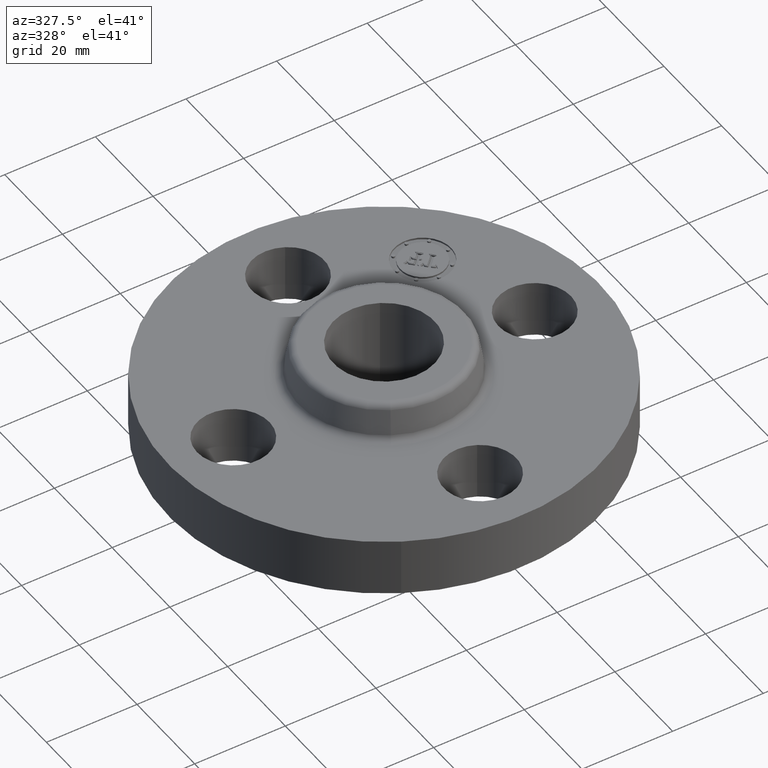
[diagram: clean part render]
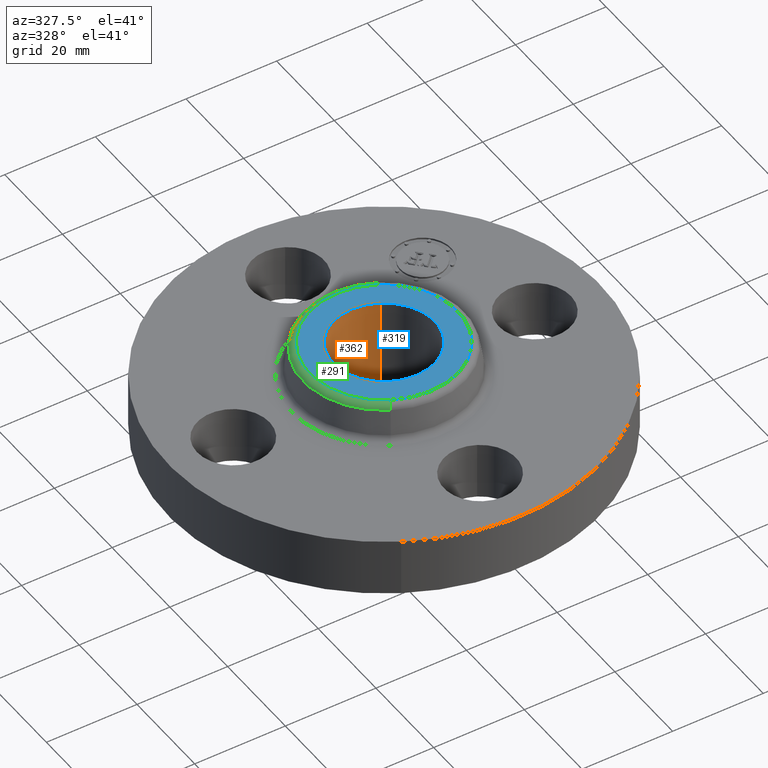
[diagram: same view with three faces highlighted in distinct colors, each labeled with its STEP entity id]
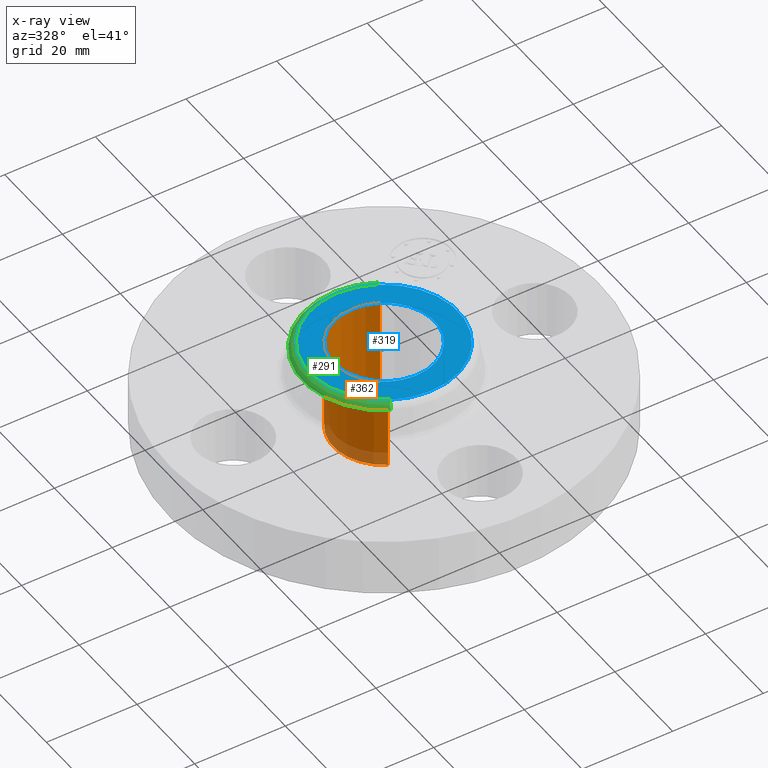
[diagram: x-ray of the same camera — body ghosted, the three highlighted faces saturated]
A machine part, auxiliary view with three faces highlighted in distinct colors.
The next image is the same camera in x-ray (body ghosted, the three faces saturated) — at least one of them is partly hidden behind the body in this view.
Their STEP definitions:

[orange] entity #362 — the highlighted cylindrical surface (partial cylindrical patch) has radius 11.176 mm, axis along (0, 0, -1).
#303=AXIS2_PLACEMENT_3D('Circle Axis2P3D',#301,#302,$) ;
#323=AXIS2_PLACEMENT_3D('Cylinder Axis2P3D',#320,#321,#322) ;
#353=AXIS2_PLACEMENT_3D('Circle Axis2P3D',#351,#352,$) ;
#301=CARTESIAN_POINT('Axis2P3D Location',(0.,0.,0.810000000003)) ;
#305=CARTESIAN_POINT('Vertex',(-0.210947236987,-0.386136327233,0.810000000003)) ;
#307=CARTESIAN_POINT('Vertex',(0.210947236987,0.386136327233,0.810000000003)) ;
#320=CARTESIAN_POINT('Axis2P3D Location',(0.,0.,0.405000000002)) ;
#325=CARTESIAN_POINT('Line Origine',(0.210947236987,0.386136327233,0.405000000002)) ;
#329=CARTESIAN_POINT('Vertex',(0.210947236987,0.386136327233,-6.71378962923E-015)) ;
#336=CARTESIAN_POINT('Vertex',(-0.210947236987,-0.386136327233,-6.71378962923E-015)) ;
#339=CARTESIAN_POINT('Line Origine',(-0.210947236987,-0.386136327233,0.405000000002)) ;
#351=CARTESIAN_POINT('Axis2P3D Location',(0.,0.,-6.71378962923E-015)) ;
#302=DIRECTION('Axis2P3D Direction',(0.,0.,-0.0393700787402)) ;
#321=DIRECTION('Axis2P3D Direction',(0.,0.,-0.0393700787402)) ;
#322=DIRECTION('Axis2P3D XDirection',(-0.0188750212049,-0.0345504945626,0.)) ;
#326=DIRECTION('Vector Direction',(0.,0.,-0.0393700787402)) ;
#340=DIRECTION('Vector Direction',(0.,0.,-0.0393700787402)) ;
#352=DIRECTION('Axis2P3D Direction',(0.,0.,-0.0393700787402)) ;
#327=VECTOR('Line Direction',#326,0.0393700787402) ;
#341=VECTOR('Line Direction',#340,0.0393700787402) ;
#357=ORIENTED_EDGE('',*,*,#309,.F.) ;
#358=ORIENTED_EDGE('',*,*,#343,.T.) ;
#359=ORIENTED_EDGE('',*,*,#355,.T.) ;
#360=ORIENTED_EDGE('',*,*,#331,.F.) ;
#362=ADVANCED_FACE('PartBody',(#361),#324,.F.) ;
#304=CIRCLE('generated circle',#303,0.440000000002) ;
#354=CIRCLE('generated circle',#353,0.440000000002) ;
#324=CYLINDRICAL_SURFACE('generated cylinder',#323,0.440000000002) ;
#309=EDGE_CURVE('',#306,#308,#304,.T.) ;
#331=EDGE_CURVE('',#308,#330,#328,.T.) ;
#343=EDGE_CURVE('',#306,#337,#342,.T.) ;
#355=EDGE_CURVE('',#337,#330,#354,.T.) ;
#356=EDGE_LOOP('',(#357,#358,#359,#360)) ;
#361=FACE_OUTER_BOUND('',#356,.T.) ;
#328=LINE('Line',#325,#327) ;
#342=LINE('Line',#339,#341) ;
#306=VERTEX_POINT('',#305) ;
#308=VERTEX_POINT('',#307) ;
#330=VERTEX_POINT('',#329) ;
#337=VERTEX_POINT('',#336) ;

[blue] entity #319 — the highlighted planar face has unit normal (0, 0, -1).
#263=AXIS2_PLACEMENT_3D('Circle Axis2P3D',#261,#262,$) ;
#282=AXIS2_PLACEMENT_3D('Circle Axis2P3D',#280,#281,$) ;
#295=AXIS2_PLACEMENT_3D('Plane Axis2P3D',#292,#293,#294) ;
#303=AXIS2_PLACEMENT_3D('Circle Axis2P3D',#301,#302,$) ;
#312=AXIS2_PLACEMENT_3D('Circle Axis2P3D',#310,#311,$) ;
#258=CARTESIAN_POINT('Vertex',(0.309225952511,0.566034309307,0.810000000003)) ;
#261=CARTESIAN_POINT('Axis2P3D Location',(0.,0.,0.810000000003)) ;
#265=CARTESIAN_POINT('Vertex',(-0.309225952511,-0.566034309307,0.810000000003)) ;
#280=CARTESIAN_POINT('Axis2P3D Location',(0.,0.,0.810000000003)) ;
#292=CARTESIAN_POINT('Axis2P3D Location',(0.,0.644992658112,0.810000000003)) ;
#301=CARTESIAN_POINT('Axis2P3D Location',(0.,0.,0.810000000003)) ;
#305=CARTESIAN_POINT('Vertex',(-0.210947236987,-0.386136327233,0.810000000003)) ;
#307=CARTESIAN_POINT('Vertex',(0.210947236987,0.386136327233,0.810000000003)) ;
#310=CARTESIAN_POINT('Axis2P3D Location',(0.,0.,0.810000000003)) ;
#262=DIRECTION('Axis2P3D Direction',(0.,0.,-0.0393700787402)) ;
#281=DIRECTION('Axis2P3D Direction',(0.,0.,-0.0393700787402)) ;
#293=DIRECTION('Axis2P3D Direction',(0.,0.,-0.0393700787402)) ;
#294=DIRECTION('Axis2P3D XDirection',(0.0393700787402,0.,0.)) ;
#302=DIRECTION('Axis2P3D Direction',(0.,0.,-0.0393700787402)) ;
#311=DIRECTION('Axis2P3D Direction',(0.,0.,-0.0393700787402)) ;
#298=ORIENTED_EDGE('',*,*,#267,.F.) ;
#299=ORIENTED_EDGE('',*,*,#284,.F.) ;
#316=ORIENTED_EDGE('',*,*,#309,.T.) ;
#317=ORIENTED_EDGE('',*,*,#314,.T.) ;
#318=FACE_BOUND('',#315,.T.) ;
#319=ADVANCED_FACE('PartBody',(#300,#318),#296,.F.) ;
#264=CIRCLE('generated circle',#263,0.644992658112) ;
#283=CIRCLE('generated circle',#282,0.644992658112) ;
#304=CIRCLE('generated circle',#303,0.440000000002) ;
#313=CIRCLE('generated circle',#312,0.440000000002) ;
#267=EDGE_CURVE('',#259,#266,#264,.T.) ;
#284=EDGE_CURVE('',#266,#259,#283,.T.) ;
#309=EDGE_CURVE('',#306,#308,#304,.T.) ;
#314=EDGE_CURVE('',#308,#306,#313,.T.) ;
#297=EDGE_LOOP('',(#298,#299)) ;
#315=EDGE_LOOP('',(#316,#317)) ;
#300=FACE_OUTER_BOUND('',#297,.T.) ;
#296=PLANE('',#295) ;
#259=VERTEX_POINT('',#258) ;
#266=VERTEX_POINT('',#265) ;
#306=VERTEX_POINT('',#305) ;
#308=VERTEX_POINT('',#307) ;

[green] entity #291 — the highlighted toroidal blend (fillet) surface has major radius 16.3828 mm and minor (blend) radius 1.524 mm.
#239=AXIS2_PLACEMENT_3D('Circle Axis2P3D',#237,#238,$) ;
#252=AXIS2_PLACEMENT_3D('Torus Axis2P3D',#249,#250,#251) ;
#256=AXIS2_PLACEMENT_3D('Circle Axis2P3D',#254,#255,$) ;
#270=AXIS2_PLACEMENT_3D('Circle Axis2P3D',#268,#269,$) ;
#282=AXIS2_PLACEMENT_3D('Circle Axis2P3D',#280,#281,$) ;
#215=CARTESIAN_POINT('Vertex',(0.337554471756,0.617889315958,0.760418890663)) ;
#222=CARTESIAN_POINT('Vertex',(-0.337554471756,-0.617889315958,0.760418890663)) ;
#237=CARTESIAN_POINT('Axis2P3D Location',(0.,0.,0.760418890663)) ;
#249=CARTESIAN_POINT('Axis2P3D Location',(0.,0.,0.750000000003)) ;
#254=CARTESIAN_POINT('Axis2P3D Location',(0.309225952511,0.566034309307,0.750000000003)) ;
#258=CARTESIAN_POINT('Vertex',(0.309225952511,0.566034309307,0.810000000003)) ;
#265=CARTESIAN_POINT('Vertex',(-0.309225952511,-0.566034309307,0.810000000003)) ;
#268=CARTESIAN_POINT('Axis2P3D Location',(-0.309225952511,-0.566034309307,0.750000000003)) ;
#280=CARTESIAN_POINT('Axis2P3D Location',(0.,0.,0.810000000003)) ;
#238=DIRECTION('Axis2P3D Direction',(0.,0.,-0.0393700787402)) ;
#250=DIRECTION('Axis2P3D Direction',(0.,0.,-0.0393700787402)) ;
#251=DIRECTION('Axis2P3D XDirection',(-0.0188750212049,-0.0345504945626,0.)) ;
#255=DIRECTION('Axis2P3D Direction',(-0.0345504945626,0.0188750212049,0.)) ;
#269=DIRECTION('Axis2P3D Direction',(0.0345504945626,-0.0188750212049,0.)) ;
#281=DIRECTION('Axis2P3D Direction',(0.,0.,-0.0393700787402)) ;
#286=ORIENTED_EDGE('',*,*,#241,.F.) ;
#287=ORIENTED_EDGE('',*,*,#272,.T.) ;
#288=ORIENTED_EDGE('',*,*,#284,.T.) ;
#289=ORIENTED_EDGE('',*,*,#260,.F.) ;
#291=ADVANCED_FACE('PartBody',(#290),#253,.T.) ;
#240=CIRCLE('generated circle',#239,0.704081123293) ;
#257=CIRCLE('generated circle',#256,0.0600000000002) ;
#271=CIRCLE('generated circle',#270,0.0600000000002) ;
#283=CIRCLE('generated circle',#282,0.644992658112) ;
#253=TOROIDAL_SURFACE('homeo Torus',#252,0.644992658112,0.0600000000002) ;
#241=EDGE_CURVE('',#223,#216,#240,.T.) ;
#260=EDGE_CURVE('',#216,#259,#257,.F.) ;
#272=EDGE_CURVE('',#223,#266,#271,.F.) ;
#284=EDGE_CURVE('',#266,#259,#283,.T.) ;
#285=EDGE_LOOP('',(#286,#287,#288,#289)) ;
#290=FACE_OUTER_BOUND('',#285,.T.) ;
#216=VERTEX_POINT('',#215) ;
#223=VERTEX_POINT('',#222) ;
#259=VERTEX_POINT('',#258) ;
#266=VERTEX_POINT('',#265) ;